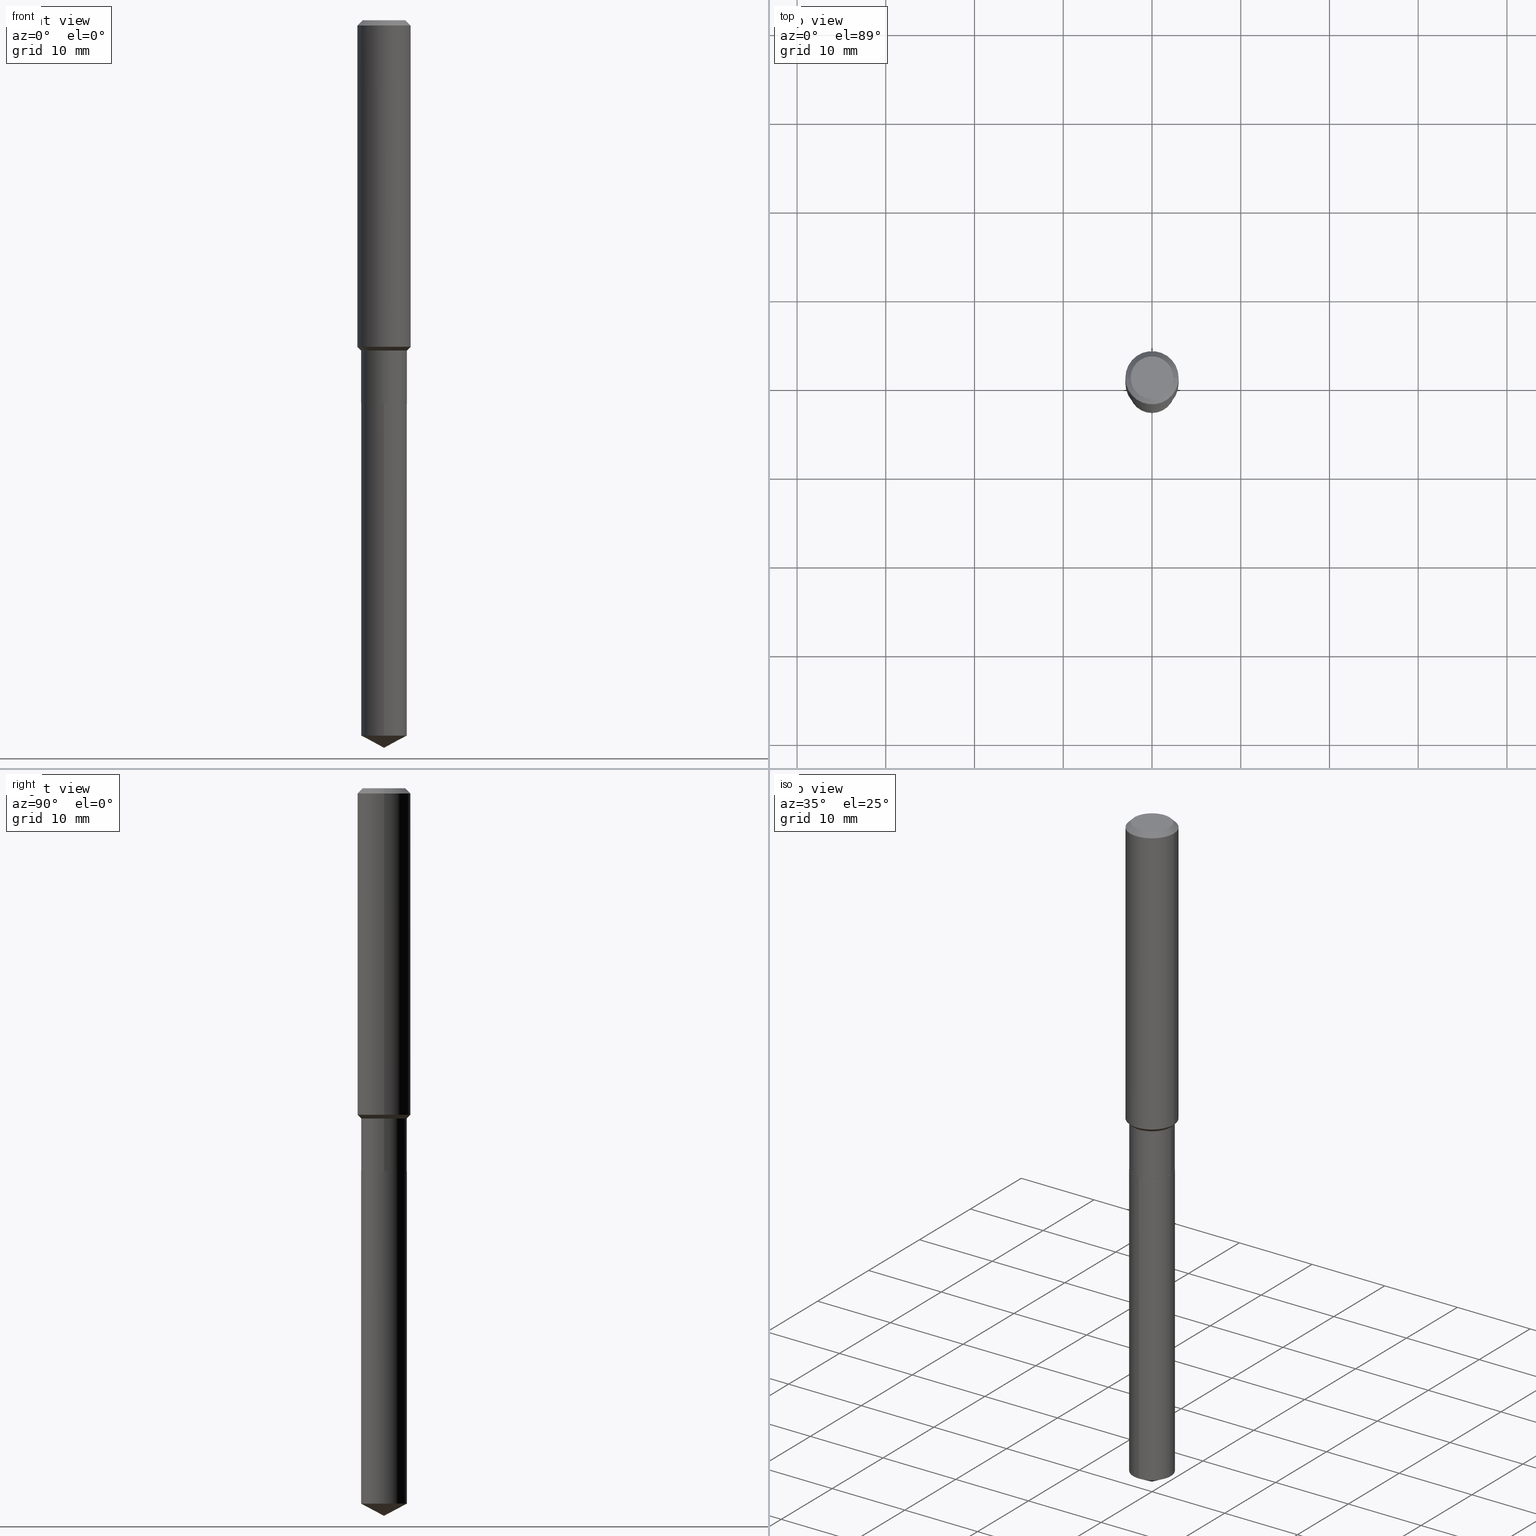
[diagram: canonical four-view strip — front | top / right | iso, engineering-drawing reading convention]
A machine part, canonical four-view strip (front | top / right | iso — engineering-drawing reading convention). The complete STEP part file that produces these views, byte-faithful:
ISO-10303-21;
HEADER;
FILE_DESCRIPTION (( 'STEP AP203' ),
    '1' );
FILE_NAME ('54807.STEP',
    '2024-04-24T15:49:00',
    ( '' ),
    ( '' ),
    'SwSTEP 2.0',
    'SolidWorks 2023',
    '' );
FILE_SCHEMA (( 'CONFIG_CONTROL_DESIGN' ));
ENDSEC;

DATA;
#1 = ORIENTED_EDGE ( 'NONE', *, *, #162, .F. ) ;
#2 = VECTOR ( 'NONE', #315, 39.37007874015748854 ) ;
#3 = DIRECTION ( 'NONE',  ( 0.000000000000000000, 0.000000000000000000, 1.000000000000000000 ) ) ;
#4 = PLANE ( 'NONE',  #42 ) ;
#5 = AXIS2_PLACEMENT_3D ( 'NONE', #176, #254, #29 ) ;
#6 = PERSON_AND_ORGANIZATION ( #424, #433 ) ;
#7 = CARTESIAN_POINT ( 'NONE',  ( 7.215561481644231637E-16, 0.1015499999999940756, -1.699100000000000499 ) ) ;
#8 = ORIENTED_EDGE ( 'NONE', *, *, #340, .F. ) ;
#9 = EDGE_LOOP ( 'NONE', ( #388, #407, #318, #412 ) ) ;
#10 = CIRCLE ( 'NONE', #218, 0.1181000000000001632 ) ;
#11 = ADVANCED_FACE ( 'NONE', ( #285 ), #4, .F. ) ;
#12 = DIRECTION ( 'NONE',  ( -2.445468806185136877E-29, 3.491481338843145188E-15, 1.000000000000000000 ) ) ;
#13 = CARTESIAN_POINT ( 'NONE',  ( 5.776197320209327532E-31, -8.246878922347559293E-17, -0.02362000000000014088 ) ) ;
#14 = DIRECTION ( 'NONE',  ( -2.445545835691527573E-29, 3.491371028205746504E-15, 1.000000000000000000 ) ) ;
#15 = FACE_OUTER_BOUND ( 'NONE', #193, .T. ) ;
#16 = DIRECTION ( 'NONE',  ( 1.000000000000000000, -6.982962677686266711E-15, 0.000000000000000000 ) ) ;
#17 = EDGE_LOOP ( 'NONE', ( #400, #477, #112, #404 ) ) ;
#18 = CIRCLE ( 'NONE', #61, 0.1015500000000000014 ) ;
#19 = VECTOR ( 'NONE', #394, 39.37007874015748143 ) ;
#20 = EDGE_CURVE ( 'NONE', #301, #30, #18, .T. ) ;
#21 = CARTESIAN_POINT ( 'NONE',  ( -0.1180999999999999966, 7.422191030112725094E-16, -0.02362000000000014088 ) ) ;
#22 = DIRECTION ( 'NONE',  ( 1.000000000000000000, -6.982962677686266711E-15, 0.000000000000000000 ) ) ;
#23 = ADVANCED_FACE ( 'NONE', ( #51 ), #123, .T. ) ;
#24 = DIRECTION ( 'NONE',  ( 0.7071067811865460184, -7.319954787623251312E-15, -0.7071067811865490160 ) ) ;
#25 = CIRCLE ( 'NONE', #33, 0.1015500000000000014 ) ;
#26 = CARTESIAN_POINT ( 'NONE',  ( 0.1181000000000001632, -5.883669778151525797E-15, -1.448950000000000182 ) ) ;
#27 = VERTEX_POINT ( 'NONE', #470 ) ;
#28 = CC_DESIGN_DATE_AND_TIME_ASSIGNMENT ( #266, #80, ( #356 ) ) ;
#29 = DIRECTION ( 'NONE',  ( 1.000000000000000000, -6.982962677686266711E-15, 4.876176775795935793E-29 ) ) ;
#30 = VERTEX_POINT ( 'NONE', #294 ) ;
#31 = EDGE_CURVE ( 'NONE', #301, #267, #63, .T. ) ;
#32 = LENGTH_MEASURE_WITH_UNIT ( LENGTH_MEASURE( 0.02539999999999999897 ), #262 );
#33 = AXIS2_PLACEMENT_3D ( 'NONE', #100, #14, #246 ) ;
#34 = VECTOR ( 'NONE', #360, 39.37007874015748143 ) ;
#35 = APPROVAL_DATE_TIME ( #82, #271 ) ;
#36 = ORIENTED_EDGE ( 'NONE', *, *, #472, .T. ) ;
#37 = APPLICATION_CONTEXT ( 'configuration controlled 3d designs of mechanical parts and assemblies' ) ;
#38 = CARTESIAN_POINT ( 'NONE',  ( 0.1010500000000000009, -6.638004321408586283E-15, -1.699100000000000277 ) ) ;
#39 = EDGE_CURVE ( 'NONE', #343, #78, #52, .T. ) ;
#40 = COORDINATED_UNIVERSAL_TIME_OFFSET ( 5, 0, .BEHIND. ) ;
#41 = ORIENTED_EDGE ( 'NONE', *, *, #370, .F. ) ;
#42 = AXIS2_PLACEMENT_3D ( 'NONE', #428, #312, #90 ) ;
#43 = DATE_AND_TIME ( #273, #252 ) ;
#44 = CONICAL_SURFACE ( 'NONE', #317, 0.1180999999999999966, 0.7853981633974461696 ) ;
#45 = DIRECTION ( 'NONE',  ( 1.000000000000000000, -6.982962677686266711E-15, 4.876176775795935793E-29 ) ) ;
#46 = APPROVAL_STATUS ( 'not_yet_approved' ) ;
#47 = DIRECTION ( 'NONE',  ( -2.445468806185136597E-29, 3.491481338843145583E-15, 1.000000000000000000 ) ) ;
#48 = CC_DESIGN_DATE_AND_TIME_ASSIGNMENT ( #43, #347, ( #186 ) ) ;
#49 = DIRECTION ( 'NONE',  ( -2.445468806185136597E-29, 3.491481338843145583E-15, 1.000000000000000000 ) ) ;
#50 = PRODUCT ( '54807', '54807', '', ( #420 ) ) ;
#51 = FACE_OUTER_BOUND ( 'NONE', #369, .T. ) ;
#52 = CIRCLE ( 'NONE', #337, 0.1015500000000000014 ) ;
#53 = DIRECTION ( 'NONE',  ( -6.982962677686266711E-15, -1.000000000000000000, 2.690150658458161520E-15 ) ) ;
#54 = CIRCLE ( 'NONE', #113, 0.1015499999999999736 ) ;
#55 = ORIENTED_EDGE ( 'NONE', *, *, #148, .T. ) ;
#56 = LINE ( 'NONE', #101, #484 ) ;
#57 = DIRECTION ( 'NONE',  ( -6.982962677686268288E-15, -1.000000000000000000, 3.541896320645553769E-15 ) ) ;
#58 = VERTEX_POINT ( 'NONE', #436 ) ;
#59 = EDGE_CURVE ( 'NONE', #413, #146, #25, .T. ) ;
#60 = FACE_OUTER_BOUND ( 'NONE', #17, .T. ) ;
#61 = AXIS2_PLACEMENT_3D ( 'NONE', #391, #309, #456 ) ;
#62 = CIRCLE ( 'NONE', #269, 0.1015499999999999736 ) ;
#63 = LINE ( 'NONE', #291, #258 ) ;
#64 = DIRECTION ( 'NONE',  ( -2.445468806185136597E-29, 3.491481338843145583E-15, 1.000000000000000000 ) ) ;
#65 = CARTESIAN_POINT ( 'NONE',  ( 7.893960195943632746E-29, -1.127052053665616049E-14, -3.228000000000000203 ) ) ;
#66 = ADVANCED_FACE ( 'NONE', ( #438 ), #211, .T. ) ;
#67 = DIRECTION ( 'NONE',  ( 1.000000000000000000, -6.982962677686266711E-15, 0.000000000000000000 ) ) ;
#68 = ORIENTED_EDGE ( 'NONE', *, *, #488, .T. ) ;
#69 = AXIS2_PLACEMENT_3D ( 'NONE', #280, #47, #422 ) ;
#70 = LOCAL_TIME ( 11, 49, 0.000000000000000000, #40 ) ;
#71 = DIRECTION ( 'NONE',  ( 6.982962677686265922E-15, 1.000000000000000000, -3.491371028205746504E-15 ) ) ;
#72 = ORIENTED_EDGE ( 'NONE', *, *, #458, .F. ) ;
#73 = ORIENTED_EDGE ( 'NONE', *, *, #148, .F. ) ;
#74 = APPROVAL_ROLE ( '' ) ;
#75 = EDGE_LOOP ( 'NONE', ( #319, #325 ) ) ;
#76 = DIRECTION ( 'NONE',  ( 1.000000000000000000, -6.982962677686267499E-15, 4.875432709231658792E-29 ) ) ;
#77 = CC_DESIGN_APPROVAL ( #160, ( #186 ) ) ;
#78 = VERTEX_POINT ( 'NONE', #166 ) ;
#79 = PLANE ( 'NONE',  #201 ) ;
#80 = DATE_TIME_ROLE ( 'creation_date' ) ;
#81 = DIRECTION ( 'NONE',  ( 1.000000000000000000, -6.982962677686269077E-15, 0.000000000000000000 ) ) ;
#82 = DATE_AND_TIME ( #190, #70 ) ;
#83 = DIRECTION ( 'NONE',  ( -2.445545835691527573E-29, 3.491371028205746504E-15, 1.000000000000000000 ) ) ;
#84 = CYLINDRICAL_SURFACE ( 'NONE', #366, 0.1015499999999999875 ) ;
#85 = AXIS2_PLACEMENT_3D ( 'NONE', #119, #490, #386 ) ;
#86 = DATE_AND_TIME ( #278, #439 ) ;
#87 = ORIENTED_EDGE ( 'NONE', *, *, #31, .T. ) ;
#88 = AXIS2_PLACEMENT_3D ( 'NONE', #364, #409, #71 ) ;
#89 = DIRECTION ( 'NONE',  ( 2.445468806185136597E-29, -3.491481338843145583E-15, -1.000000000000000000 ) ) ;
#90 = DIRECTION ( 'NONE',  ( -1.000000000000000000, 6.982962677686265922E-15, -4.876176775795935793E-29 ) ) ;
#91 = ADVANCED_FACE ( 'NONE', ( #465 ), #310, .T. ) ;
#92 = LINE ( 'NONE', #136, #233 ) ;
#93 = AXIS2_PLACEMENT_3D ( 'NONE', #272, #313, #124 ) ;
#94 = FACE_OUTER_BOUND ( 'NONE', #200, .T. ) ;
#95 = CIRCLE ( 'NONE', #385, 0.1015500000000000014 ) ;
#96 = ADVANCED_FACE ( 'NONE', ( #275 ), #84, .T. ) ;
#97 = ORIENTED_EDGE ( 'NONE', *, *, #427, .F. ) ;
#98 = CARTESIAN_POINT ( 'NONE',  ( 0.1010500000000000009, -6.638004321408586283E-15, -1.699100000000000277 ) ) ;
#99 = ADVANCED_FACE ( 'NONE', ( #459 ), #142, .T. ) ;
#100 = CARTESIAN_POINT ( 'NONE',  ( 7.762043602469263773E-29, -1.108181620523654682E-14, -3.174004907214777127 ) ) ;
#101 = CARTESIAN_POINT ( 'NONE',  ( -0.1010500000000000009, -5.214372508342807461E-15, -1.699100000000000277 ) ) ;
#102 = DIRECTION ( 'NONE',  ( -2.445545835691527573E-29, 3.491371028205746504E-15, 1.000000000000000000 ) ) ;
#103 = CONICAL_SURFACE ( 'NONE', #85, 0.1010500000000000009, 0.7853981633975507526 ) ;
#104 = AXIS2_PLACEMENT_3D ( 'NONE', #244, #431, #290 ) ;
#105 = VECTOR ( 'NONE', #141, 39.37007874015747433 ) ;
#106 = DIRECTION ( 'NONE',  ( 1.000000000000000000, -6.982962677686266711E-15, 4.876176775795936353E-29 ) ) ;
#107 = DIRECTION ( 'NONE',  ( -2.445545835691527573E-29, 3.491371028205746504E-15, 1.000000000000000000 ) ) ;
#108 = DIMENSIONAL_EXPONENTS ( 1.000000000000000000, 0.000000000000000000, 0.000000000000000000, 0.000000000000000000, 0.000000000000000000, 0.000000000000000000, 0.000000000000000000 ) ;
#109 = LINE ( 'NONE', #212, #171 ) ;
#110 = ORIENTED_EDGE ( 'NONE', *, *, #162, .T. ) ;
#111 = PLANE ( 'NONE',  #88 ) ;
#112 = ORIENTED_EDGE ( 'NONE', *, *, #458, .T. ) ;
#113 = AXIS2_PLACEMENT_3D ( 'NONE', #179, #332, #22 ) ;
#114 = ORIENTED_EDGE ( 'NONE', *, *, #340, .T. ) ;
#115 = SHAPE_DEFINITION_REPRESENTATION ( #478, #202 ) ;
#116 = EDGE_LOOP ( 'NONE', ( #238, #314, #87, #215 ) ) ;
#117 = APPROVAL_STATUS ( 'not_yet_approved' ) ;
#118 = EDGE_LOOP ( 'NONE', ( #358, #279, #265 ) ) ;
#119 = CARTESIAN_POINT ( 'NONE',  ( 4.155096048589166181E-29, -5.932375942828389297E-15, -1.699100000000000277 ) ) ;
#120 = CONICAL_SURFACE ( 'NONE', #338, 74.04434902938368168, 1.082104136236487379 ) ;
#121 = PERSON_AND_ORGANIZATION ( #424, #433 ) ;
#122 = PERSON_AND_ORGANIZATION_ROLE ( 'design_supplier' ) ;
#123 = CYLINDRICAL_SURFACE ( 'NONE', #241, 0.1015500000000000014 ) ;
#124 = DIRECTION ( 'NONE',  ( 1.000000000000000000, -6.982962677686266711E-15, 0.000000000000000000 ) ) ;
#125 = COORDINATED_UNIVERSAL_TIME_OFFSET ( 5, 0, .BEHIND. ) ;
#126 = AXIS2_PLACEMENT_3D ( 'NONE', #13, #167, #129 ) ;
#127 = LOCAL_TIME ( 11, 49, 0.000000000000000000, #196 ) ;
#128 = EDGE_LOOP ( 'NONE', ( #159, #380, #453 ) ) ;
#129 = DIRECTION ( 'NONE',  ( -1.000000000000000000, 6.982962677686266711E-15, 0.000000000000000000 ) ) ;
#130 = EDGE_LOOP ( 'NONE', ( #255, #180, #36, #8 ) ) ;
#131 = CARTESIAN_POINT ( 'NONE',  ( -0.1180999999999999966, -1.731574366637446524E-15, -0.02362000000000014088 ) ) ;
#132 = UNCERTAINTY_MEASURE_WITH_UNIT (LENGTH_MEASURE( 1.000000000000000082E-05 ), #174, 'distance_accuracy_value', 'NONE');
#133 = CARTESIAN_POINT ( 'NONE',  ( 5.776197320209327532E-31, -8.246878922347559293E-17, -0.02362000000000014088 ) ) ;
#134 = CC_DESIGN_APPROVAL ( #271, ( #356 ) ) ;
#135 = APPLICATION_CONTEXT ( 'configuration controlled 3d designs of mechanical parts and assemblies' ) ;
#136 = CARTESIAN_POINT ( 'NONE',  ( -0.1015499999999999875, 7.215561481643816499E-16, -4.995178584153856401E-30 ) ) ;
#137 = ADVANCED_FACE ( 'NONE', ( #230 ), #79, .F. ) ;
#138 = DIRECTION ( 'NONE',  ( -2.445468806185136877E-29, 3.491481338843145188E-15, 1.000000000000000000 ) ) ;
#139 =( NAMED_UNIT ( * ) PLANE_ANGLE_UNIT ( ) SI_UNIT ( $, .RADIAN. ) );
#140 = DIRECTION ( 'NONE',  ( -2.445545835691527573E-29, 3.491371028205746504E-15, 1.000000000000000000 ) ) ;
#141 = DIRECTION ( 'NONE',  ( -6.165590087286837607E-15, -0.8829475928589267664, 0.4694715627858912499 ) ) ;
#142 = CONICAL_SURFACE ( 'NONE', #163, 0.1010500000000000009, 0.7853981633975507526 ) ;
#143 = CARTESIAN_POINT ( 'NONE',  ( -0.1015499999999999736, -4.395209753910248540E-15, -1.465500000000000247 ) ) ;
#144 = ORIENTED_EDGE ( 'NONE', *, *, #232, .T. ) ;
#145 = DIRECTION ( 'NONE',  ( -6.982962677686268288E-15, -1.000000000000000000, 3.541896320645553769E-15 ) ) ;
#146 = VERTEX_POINT ( 'NONE', #339 ) ;
#147 = DIRECTION ( 'NONE',  ( 1.000000000000000000, -6.982962677686269077E-15, 0.000000000000000000 ) ) ;
#148 = EDGE_CURVE ( 'NONE', #413, #78, #348, .T. ) ;
#149 = ORIENTED_EDGE ( 'NONE', *, *, #472, .F. ) ;
#150 = APPROVAL_PERSON_ORGANIZATION ( #154, #271, #153 ) ;
#151 = APPROVAL_DATE_TIME ( #86, #160 ) ;
#152 = ORIENTED_EDGE ( 'NONE', *, *, #410, .T. ) ;
#153 = APPROVAL_ROLE ( '' ) ;
#154 = PERSON_AND_ORGANIZATION ( #424, #433 ) ;
#155 = ORIENTED_EDGE ( 'NONE', *, *, #39, .T. ) ;
#156 = CIRCLE ( 'NONE', #69, 0.1010500000000000009 ) ;
#157 = VECTOR ( 'NONE', #24, 39.37007874015748143 ) ;
#158 = PERSON_AND_ORGANIZATION_ROLE ( 'design_owner' ) ;
#159 = ORIENTED_EDGE ( 'NONE', *, *, #198, .F. ) ;
#160 = APPROVAL ( #379, 'UNSPECIFIED' ) ;
#161 = CARTESIAN_POINT ( 'NONE',  ( 0.000000000000000000, 0.000000000000000000, 0.000000000000000000 ) ) ;
#162 = EDGE_CURVE ( 'NONE', #27, #224, #156, .T. ) ;
#163 = AXIS2_PLACEMENT_3D ( 'NONE', #194, #268, #81 ) ;
#164 = DIRECTION ( 'NONE',  ( 1.000000000000000000, -6.982962677686266711E-15, 4.876176775795936353E-29 ) ) ;
#165 = DIRECTION ( 'NONE',  ( 1.000000000000000000, -6.982962677686263555E-15, 0.000000000000000000 ) ) ;
#166 = CARTESIAN_POINT ( 'NONE',  ( 7.215561481644595499E-16, 0.1015499999999940756, -1.699100000000000499 ) ) ;
#167 = DIRECTION ( 'NONE',  ( 2.445468806185136597E-29, -3.491481338843145583E-15, -1.000000000000000000 ) ) ;
#168 = DESIGN_CONTEXT ( 'detailed design', #37, 'design' ) ;
#169 = AXIS2_PLACEMENT_3D ( 'NONE', #249, #441, #106 ) ;
#170 = CARTESIAN_POINT ( 'NONE',  ( 3.543362026721954415E-29, -5.058981885916776746E-15, -1.448950000000000182 ) ) ;
#171 = VECTOR ( 'NONE', #447, 39.37007874015748143 ) ;
#172 = ORIENTED_EDGE ( 'NONE', *, *, #282, .T. ) ;
#173 = CARTESIAN_POINT ( 'NONE',  ( 4.155096048589166181E-29, -5.932375942828389297E-15, -1.699100000000000277 ) ) ;
#174 =( CONVERSION_BASED_UNIT ( 'INCH', #32 ) LENGTH_UNIT ( ) NAMED_UNIT ( #108 ) );
#175 = ORIENTED_EDGE ( 'NONE', *, *, #349, .F. ) ;
#176 = CARTESIAN_POINT ( 'NONE',  ( 0.000000000000000000, 0.000000000000000000, 0.000000000000000000 ) ) ;
#177 = AXIS2_PLACEMENT_3D ( 'NONE', #287, #205, #16 ) ;
#178 = CIRCLE ( 'NONE', #455, 0.1180999999999999966 ) ;
#179 = CARTESIAN_POINT ( 'NONE',  ( 3.583834535464318409E-29, -5.116765902074630486E-15, -1.465500000000000247 ) ) ;
#180 = ORIENTED_EDGE ( 'NONE', *, *, #432, .T. ) ;
#181 = ADVANCED_FACE ( 'NONE', ( #236 ), #103, .T. ) ;
#182 = CARTESIAN_POINT ( 'NONE',  ( 0.1180999999999999966, -8.926936027602933910E-16, -0.02362000000000014088 ) ) ;
#183 = ORIENTED_EDGE ( 'NONE', *, *, #432, .F. ) ;
#184 = ORIENTED_EDGE ( 'NONE', *, *, #410, .F. ) ;
#185 = CIRCLE ( 'NONE', #250, 0.1015500000000000014 ) ;
#186 = SECURITY_CLASSIFICATION ( '', '', #305 ) ;
#187 = ORIENTED_EDGE ( 'NONE', *, *, #234, .T. ) ;
#188 = DIRECTION ( 'NONE',  ( 1.000000000000000000, -6.982962677686265922E-15, 4.876176775795935793E-29 ) ) ;
#189 = ORIENTED_EDGE ( 'NONE', *, *, #234, .F. ) ;
#190 = CALENDAR_DATE ( 2024, 24, 4 ) ;
#191 = CIRCLE ( 'NONE', #302, 0.1010500000000000009 ) ;
#192 = DATE_AND_TIME ( #485, #127 ) ;
#193 = EDGE_LOOP ( 'NONE', ( #183, #489, #114, #336 ) ) ;
#194 = CARTESIAN_POINT ( 'NONE',  ( 4.155096048589166181E-29, -5.932375942828389297E-15, -1.699100000000000277 ) ) ;
#195 = MANIFOLD_SOLID_BREP ( 'Body-Move/Copy2[1]', #226 ) ;
#196 = COORDINATED_UNIVERSAL_TIME_OFFSET ( 5, 0, .BEHIND. ) ;
#197 = LINE ( 'NONE', #351, #2 ) ;
#198 = EDGE_CURVE ( 'NONE', #345, #413, #197, .T. ) ;
#199 = DIRECTION ( 'NONE',  ( 1.000000000000000000, -6.982962677686263555E-15, 0.000000000000000000 ) ) ;
#200 = EDGE_LOOP ( 'NONE', ( #375, #55, #333, #482 ) ) ;
#201 = AXIS2_PLACEMENT_3D ( 'NONE', #225, #383, #188 ) ;
#202 = ADVANCED_BREP_SHAPE_REPRESENTATION ( '54807', ( #195, #361, #295 ), #362 ) ;
#203 = CC_DESIGN_SECURITY_CLASSIFICATION ( #186, ( #408 ) ) ;
#204 = CARTESIAN_POINT ( 'NONE',  ( 3.543362026721954415E-29, -5.058981885916776746E-15, -1.448950000000000182 ) ) ;
#205 = DIRECTION ( 'NONE',  ( -2.445468806185136597E-29, 3.491481338843145583E-15, 1.000000000000000000 ) ) ;
#206 = DIRECTION ( 'NONE',  ( -2.445468806185136597E-29, 3.491481338843145583E-15, 1.000000000000000000 ) ) ;
#207 = ORIENTED_EDGE ( 'NONE', *, *, #418, .F. ) ;
#208 = CIRCLE ( 'NONE', #293, 0.1181000000000001632 ) ;
#209 = CYLINDRICAL_SURFACE ( 'NONE', #475, 0.1181000000000000799 ) ;
#210 = LOCAL_TIME ( 11, 49, 0.000000000000000000, #303 ) ;
#211 = CYLINDRICAL_SURFACE ( 'NONE', #169, 0.1181000000000000799 ) ;
#212 = CARTESIAN_POINT ( 'NONE',  ( 0.1181000000000000799, -8.246878922347486570E-16, 5.758764772215004644E-30 ) ) ;
#213 = EDGE_LOOP ( 'NONE', ( #175, #110, #172, #416 ) ) ;
#214 = CARTESIAN_POINT ( 'NONE',  ( 5.776197320209327532E-31, -8.246878922347559293E-17, -0.02362000000000014088 ) ) ;
#215 = ORIENTED_EDGE ( 'NONE', *, *, #488, .F. ) ;
#216 = FACE_OUTER_BOUND ( 'NONE', #463, .T. ) ;
#217 = EDGE_LOOP ( 'NONE', ( #152, #486, #189, #97 ) ) ;
#218 = AXIS2_PLACEMENT_3D ( 'NONE', #204, #49, #199 ) ;
#219 = CARTESIAN_POINT ( 'NONE',  ( 3.583834535464318409E-29, -5.116765902074630486E-15, -1.465500000000000247 ) ) ;
#220 = ORIENTED_EDGE ( 'NONE', *, *, #372, .T. ) ;
#221 = LINE ( 'NONE', #365, #289 ) ;
#222 = PRODUCT_RELATED_PRODUCT_CATEGORY ( 'detail', '', ( #50 ) ) ;
#223 = EDGE_CURVE ( 'NONE', #263, #462, #288, .T. ) ;
#224 = VERTEX_POINT ( 'NONE', #38 ) ;
#225 = CARTESIAN_POINT ( 'NONE',  ( 4.155096048589166181E-29, -5.932375942828389297E-15, -1.699100000000000277 ) ) ;
#226 = CLOSED_SHELL ( 'NONE', ( #341, #328, #397, #23, #487 ) ) ;
#227 = CIRCLE ( 'NONE', #461, 0.1015500000000000014 ) ;
#228 = EDGE_LOOP ( 'NONE', ( #187, #304, #149, #72 ) ) ;
#229 = APPLICATION_PROTOCOL_DEFINITION ( 'international standard', 'config_control_design', 1994, #37 ) ;
#230 = FACE_OUTER_BOUND ( 'NONE', #425, .T. ) ;
#231 = CALENDAR_DATE ( 2024, 24, 4 ) ;
#232 = EDGE_CURVE ( 'NONE', #30, #58, #92, .T. ) ;
#233 = VECTOR ( 'NONE', #12, 39.37007874015748143 ) ;
#234 = EDGE_CURVE ( 'NONE', #390, #257, #10, .T. ) ;
#235 = CIRCLE ( 'NONE', #330, 0.1180999999999999966 ) ;
#236 = FACE_OUTER_BOUND ( 'NONE', #9, .T. ) ;
#237 = CARTESIAN_POINT ( 'NONE',  ( -8.838724103706172862E-28, 1.261852191837126784E-13, 36.14207874015747990 ) ) ;
#238 = ORIENTED_EDGE ( 'NONE', *, *, #232, .F. ) ;
#239 = CYLINDRICAL_SURFACE ( 'NONE', #259, 0.1015500000000000014 ) ;
#240 = ADVANCED_FACE ( 'NONE', ( #15 ), #483, .T. ) ;
#241 = AXIS2_PLACEMENT_3D ( 'NONE', #274, #83, #243 ) ;
#242 = CARTESIAN_POINT ( 'NONE',  ( -0.1181000000000000799, 8.391509709326788873E-16, -5.809262341591047988E-30 ) ) ;
#243 = DIRECTION ( 'NONE',  ( -6.982962677686266711E-15, -1.000000000000000000, 2.690150658458161520E-15 ) ) ;
#244 = CARTESIAN_POINT ( 'NONE',  ( 6.603013411620882309E-46, -9.427353171913646324E-32, -2.700101262760083747E-17 ) ) ;
#245 = EDGE_CURVE ( 'NONE', #257, #390, #208, .T. ) ;
#246 = DIRECTION ( 'NONE',  ( -6.982962677686266711E-15, -1.000000000000000000, 5.380301316916323039E-15 ) ) ;
#247 = DIRECTION ( 'NONE',  ( -1.000000000000000000, 6.982962677686266711E-15, 0.000000000000000000 ) ) ;
#248 = ORIENTED_EDGE ( 'NONE', *, *, #427, .T. ) ;
#249 = CARTESIAN_POINT ( 'NONE',  ( 0.000000000000000000, 0.000000000000000000, 0.000000000000000000 ) ) ;
#250 = AXIS2_PLACEMENT_3D ( 'NONE', #468, #469, #466 ) ;
#251 = LINE ( 'NONE', #143, #393 ) ;
#252 = LOCAL_TIME ( 11, 49, 0.000000000000000000, #384 ) ;
#253 = CARTESIAN_POINT ( 'NONE',  ( -8.838724103706172862E-28, 1.261852191837126784E-13, 36.14207874015747990 ) ) ;
#254 = DIRECTION ( 'NONE',  ( -2.445468806185136597E-29, 3.491481338843145583E-15, 1.000000000000000000 ) ) ;
#255 = ORIENTED_EDGE ( 'NONE', *, *, #326, .F. ) ;
#256 = CARTESIAN_POINT ( 'NONE',  ( 0.1180999999999999966, -9.071566814582237199E-16, -0.02362000000000014088 ) ) ;
#257 = VERTEX_POINT ( 'NONE', #321 ) ;
#258 = VECTOR ( 'NONE', #138, 39.37007874015748143 ) ;
#259 = AXIS2_PLACEMENT_3D ( 'NONE', #173, #429, #53 ) ;
#260 = CC_DESIGN_PERSON_AND_ORGANIZATION_ASSIGNMENT ( #308, #264, ( #408 ) ) ;
#261 = ADVANCED_FACE ( 'NONE', ( #324 ), #460, .T. ) ;
#262 =( LENGTH_UNIT ( ) NAMED_UNIT ( * ) SI_UNIT ( $, .METRE. ) );
#263 = VERTEX_POINT ( 'NONE', #322 ) ;
#264 = PERSON_AND_ORGANIZATION_ROLE ( 'creator' ) ;
#265 = ORIENTED_EDGE ( 'NONE', *, *, #277, .F. ) ;
#266 = DATE_AND_TIME ( #231, #210 ) ;
#267 = VERTEX_POINT ( 'NONE', #355 ) ;
#268 = DIRECTION ( 'NONE',  ( -2.445468806185136597E-29, 3.491481338843145583E-15, 1.000000000000000000 ) ) ;
#269 = AXIS2_PLACEMENT_3D ( 'NONE', #219, #300, #449 ) ;
#270 = DIRECTION ( 'NONE',  ( 1.000000000000000000, 0.000000000000000000, 0.000000000000000000 ) ) ;
#271 = APPROVAL ( #117, 'UNSPECIFIED' ) ;
#272 = CARTESIAN_POINT ( 'NONE',  ( 3.583834535464318409E-29, -5.116765902074630486E-15, -1.465500000000000247 ) ) ;
#273 = CALENDAR_DATE ( 2024, 24, 4 ) ;
#274 = CARTESIAN_POINT ( 'NONE',  ( 4.155096048589166181E-29, -5.932375942828389297E-15, -1.699100000000000277 ) ) ;
#275 = FACE_OUTER_BOUND ( 'NONE', #352, .T. ) ;
#276 = CC_DESIGN_PERSON_AND_ORGANIZATION_ASSIGNMENT ( #311, #122, ( #408 ) ) ;
#277 = EDGE_CURVE ( 'NONE', #146, #413, #185, .T. ) ;
#278 = CALENDAR_DATE ( 2024, 24, 4 ) ;
#279 = ORIENTED_EDGE ( 'NONE', *, *, #198, .T. ) ;
#280 = CARTESIAN_POINT ( 'NONE',  ( 4.155096048589166181E-29, -5.932375942828389297E-15, -1.699100000000000277 ) ) ;
#281 = VECTOR ( 'NONE', #378, 39.37007874015748143 ) ;
#282 = EDGE_CURVE ( 'NONE', #224, #301, #434, .T. ) ;
#283 = APPROVAL_PERSON_ORGANIZATION ( #421, #467, #74 ) ;
#284 = DIRECTION ( 'NONE',  ( -6.982962677686266711E-15, -1.000000000000000000, 2.690150658458161520E-15 ) ) ;
#285 = FACE_OUTER_BOUND ( 'NONE', #75, .T. ) ;
#286 = FACE_OUTER_BOUND ( 'NONE', #118, .T. ) ;
#287 = CARTESIAN_POINT ( 'NONE',  ( 3.583834535464318409E-29, -5.116765902074630486E-15, -1.465500000000000247 ) ) ;
#288 = CIRCLE ( 'NONE', #474, 0.09447999999999998066 ) ;
#289 = VECTOR ( 'NONE', #473, 39.37007874015748143 ) ;
#290 = DIRECTION ( 'NONE',  ( 1.000000000000000000, -6.982962677686267499E-15, 4.875432709231658792E-29 ) ) ;
#291 = CARTESIAN_POINT ( 'NONE',  ( 0.1015499999999999875, -7.091198599190402890E-16, 4.951757515820772372E-30 ) ) ;
#292 = DIRECTION ( 'NONE',  ( -0.7071067811865460184, 2.468850131082241283E-15, -0.7071067811865490160 ) ) ;
#293 = AXIS2_PLACEMENT_3D ( 'NONE', #170, #206, #165 ) ;
#294 = CARTESIAN_POINT ( 'NONE',  ( -0.1015500000000000014, -4.802141903952417194E-15, -1.698600000000000332 ) ) ;
#295 = AXIS2_PLACEMENT_3D ( 'NONE', #161, #3, #270 ) ;
#296 = CARTESIAN_POINT ( 'NONE',  ( 5.776197320209327532E-31, -8.246878922347559293E-17, -0.02362000000000014088 ) ) ;
#297 = DIRECTION ( 'NONE',  ( -2.445468806185136597E-29, 3.491481338843145583E-15, 1.000000000000000000 ) ) ;
#298 = LINE ( 'NONE', #182, #157 ) ;
#299 = VERTEX_POINT ( 'NONE', #131 ) ;
#300 = DIRECTION ( 'NONE',  ( -2.445468806185136597E-29, 3.491481338843145583E-15, 1.000000000000000000 ) ) ;
#301 = VERTEX_POINT ( 'NONE', #399 ) ;
#302 = AXIS2_PLACEMENT_3D ( 'NONE', #405, #368, #147 ) ;
#303 = COORDINATED_UNIVERSAL_TIME_OFFSET ( 5, 0, .BEHIND. ) ;
#304 = ORIENTED_EDGE ( 'NONE', *, *, #346, .T. ) ;
#305 = SECURITY_CLASSIFICATION_LEVEL ( 'unclassified' ) ;
#306 = EDGE_LOOP ( 'NONE', ( #207, #68, #248, #446 ) ) ;
#307 = CARTESIAN_POINT ( 'NONE',  ( 6.603013411620882309E-46, -9.427353171913646324E-32, -2.700101262760083747E-17 ) ) ;
#308 = PERSON_AND_ORGANIZATION ( #424, #433 ) ;
#309 = DIRECTION ( 'NONE',  ( -2.445468806185136597E-29, 3.491481338843145583E-15, 1.000000000000000000 ) ) ;
#310 = CONICAL_SURFACE ( 'NONE', #93, 0.1015499999999999736, 0.7853981633974503884 ) ;
#311 = PERSON_AND_ORGANIZATION ( #424, #433 ) ;
#312 = DIRECTION ( 'NONE',  ( 2.438088387897960049E-29, -3.491481338843145188E-15, -1.000000000000000000 ) ) ;
#313 = DIRECTION ( 'NONE',  ( -2.445468806185136597E-29, 3.491481338843145583E-15, 1.000000000000000000 ) ) ;
#314 = ORIENTED_EDGE ( 'NONE', *, *, #402, .T. ) ;
#315 = DIRECTION ( 'NONE',  ( 6.273719981627766076E-15, 0.8829475928589298750, 0.4694715627858848661 ) ) ;
#316 = CIRCLE ( 'NONE', #104, 0.09447999999999998066 ) ;
#317 = AXIS2_PLACEMENT_3D ( 'NONE', #133, #89, #247 ) ;
#318 = ORIENTED_EDGE ( 'NONE', *, *, #20, .F. ) ;
#319 = ORIENTED_EDGE ( 'NONE', *, *, #223, .T. ) ;
#320 = CARTESIAN_POINT ( 'NONE',  ( 4.155096048589166181E-29, -5.932375942828389297E-15, -1.699100000000000277 ) ) ;
#321 = CARTESIAN_POINT ( 'NONE',  ( -0.1181000000000001632, -4.219830914984096182E-15, -1.448950000000000182 ) ) ;
#322 = CARTESIAN_POINT ( 'NONE',  ( -0.09447999999999998066, 7.009847083995354710E-16, -2.700101262760559836E-17 ) ) ;
#323 = VECTOR ( 'NONE', #292, 39.37007874015748143 ) ;
#324 = FACE_OUTER_BOUND ( 'NONE', #306, .T. ) ;
#325 = ORIENTED_EDGE ( 'NONE', *, *, #326, .T. ) ;
#326 = EDGE_CURVE ( 'NONE', #462, #263, #316, .T. ) ;
#327 = DIRECTION ( 'NONE',  ( -2.445468806185136597E-29, 3.491481338843145583E-15, 1.000000000000000000 ) ) ;
#328 = ADVANCED_FACE ( 'NONE', ( #286 ), #120, .T. ) ;
#329 = FACE_OUTER_BOUND ( 'NONE', #128, .T. ) ;
#330 = AXIS2_PLACEMENT_3D ( 'NONE', #296, #64, #445 ) ;
#331 = LINE ( 'NONE', #65, #105 ) ;
#332 = DIRECTION ( 'NONE',  ( -2.445468806185136597E-29, 3.491481338843145583E-15, 1.000000000000000000 ) ) ;
#333 = ORIENTED_EDGE ( 'NONE', *, *, #39, .F. ) ;
#334 = CARTESIAN_POINT ( 'NONE',  ( 4.153873314186073379E-29, -5.930630202158967793E-15, -1.698600000000000332 ) ) ;
#335 = ORIENTED_EDGE ( 'NONE', *, *, #31, .F. ) ;
#336 = ORIENTED_EDGE ( 'NONE', *, *, #444, .T. ) ;
#337 = AXIS2_PLACEMENT_3D ( 'NONE', #398, #140, #395 ) ;
#338 = AXIS2_PLACEMENT_3D ( 'NONE', #237, #396, #57 ) ;
#339 = CARTESIAN_POINT ( 'NONE',  ( -7.091198599189627834E-16, -0.1015500000000110897, -3.174004907214776683 ) ) ;
#340 = EDGE_CURVE ( 'NONE', #263, #299, #353, .T. ) ;
#341 = ADVANCED_FACE ( 'NONE', ( #94 ), #239, .T. ) ;
#342 = PERSON_AND_ORGANIZATION_ROLE ( 'creator' ) ;
#343 = VERTEX_POINT ( 'NONE', #437 ) ;
#344 = CARTESIAN_POINT ( 'NONE',  ( 0.000000000000000000, 0.000000000000000000, 0.000000000000000000 ) ) ;
#345 = VERTEX_POINT ( 'NONE', #464 ) ;
#346 = EDGE_CURVE ( 'NONE', #257, #299, #392, .T. ) ;
#347 = DATE_TIME_ROLE ( 'classification_date' ) ;
#348 = LINE ( 'NONE', #7, #281 ) ;
#349 = EDGE_CURVE ( 'NONE', #27, #30, #56, .T. ) ;
#350 = ADVANCED_FACE ( 'NONE', ( #389 ), #44, .T. ) ;
#351 = CARTESIAN_POINT ( 'NONE',  ( 7.894224252953099318E-29, -1.127014567904815207E-14, -3.228000000000000203 ) ) ;
#352 = EDGE_LOOP ( 'NONE', ( #382, #144, #184, #335 ) ) ;
#353 = LINE ( 'NONE', #21, #323 ) ;
#354 = CLOSED_SHELL ( 'NONE', ( #181, #350, #66, #91, #96, #411, #261, #357, #240, #11, #137, #99 ) ) ;
#355 = CARTESIAN_POINT ( 'NONE',  ( 0.1015499999999999736, -5.825885761993670479E-15, -1.465500000000000247 ) ) ;
#356 = PRODUCT_DEFINITION ( 'UNKNOWN', '', #408, #168 ) ;
#357 = ADVANCED_FACE ( 'NONE', ( #60 ), #209, .T. ) ;
#358 = ORIENTED_EDGE ( 'NONE', *, *, #440, .F. ) ;
#359 = DIRECTION ( 'NONE',  ( -0.7071067811866199593, 7.493145998870616062E-15, 0.7071067811864750752 ) ) ;
#360 = DIRECTION ( 'NONE',  ( 0.7071067811866199593, -2.468850131083015945E-15, 0.7071067811864750752 ) ) ;
#361 = MANIFOLD_SOLID_BREP ( 'Body-Move/Copy2[2]', #354 ) ;
#362 =( GEOMETRIC_REPRESENTATION_CONTEXT ( 3 ) GLOBAL_UNCERTAINTY_ASSIGNED_CONTEXT ( ( #132 ) ) GLOBAL_UNIT_ASSIGNED_CONTEXT ( ( #174, #139, #381 ) ) REPRESENTATION_CONTEXT ( 'NONE', 'WORKASPACE' ) );
#363 = CARTESIAN_POINT ( 'NONE',  ( 0.000000000000000000, 0.000000000000000000, 0.000000000000000000 ) ) ;
#364 = CARTESIAN_POINT ( 'NONE',  ( 4.155096048589166181E-29, -5.932375942828389297E-15, -1.699100000000000277 ) ) ;
#365 = CARTESIAN_POINT ( 'NONE',  ( 0.1015499999999999736, -5.825885761993670479E-15, -1.465500000000000247 ) ) ;
#366 = AXIS2_PLACEMENT_3D ( 'NONE', #344, #419, #45 ) ;
#367 = AXIS2_PLACEMENT_3D ( 'NONE', #253, #102, #145 ) ;
#368 = DIRECTION ( 'NONE',  ( -2.445468806185136597E-29, 3.491481338843145583E-15, 1.000000000000000000 ) ) ;
#369 = EDGE_LOOP ( 'NONE', ( #73, #480, #220, #41 ) ) ;
#370 = EDGE_CURVE ( 'NONE', #78, #343, #95, .T. ) ;
#371 = DIRECTION ( 'NONE',  ( -0.7071067811865490160, 7.493145998870360471E-15, 0.7071067811865460184 ) ) ;
#372 = EDGE_CURVE ( 'NONE', #146, #343, #423, .T. ) ;
#373 = DIRECTION ( 'NONE',  ( 1.000000000000000000, -6.982962677686264344E-15, 0.000000000000000000 ) ) ;
#374 = APPLICATION_PROTOCOL_DEFINITION ( 'international standard', 'config_control_design', 1994, #135 ) ;
#375 = ORIENTED_EDGE ( 'NONE', *, *, #277, .T. ) ;
#376 = VECTOR ( 'NONE', #107, 39.37007874015748143 ) ;
#377 = APPROVAL_PERSON_ORGANIZATION ( #6, #160, #454 ) ;
#378 = DIRECTION ( 'NONE',  ( -2.445545835691527573E-29, 3.491371028205746504E-15, 1.000000000000000000 ) ) ;
#379 = APPROVAL_STATUS ( 'not_yet_approved' ) ;
#380 = ORIENTED_EDGE ( 'NONE', *, *, #440, .T. ) ;
#381 =( NAMED_UNIT ( * ) SI_UNIT ( $, .STERADIAN. ) SOLID_ANGLE_UNIT ( ) );
#382 = ORIENTED_EDGE ( 'NONE', *, *, #20, .T. ) ;
#383 = DIRECTION ( 'NONE',  ( -2.438088387897960049E-29, 3.491481338843145188E-15, 1.000000000000000000 ) ) ;
#384 = COORDINATED_UNIVERSAL_TIME_OFFSET ( 5, 0, .BEHIND. ) ;
#385 = AXIS2_PLACEMENT_3D ( 'NONE', #320, #471, #284 ) ;
#386 = DIRECTION ( 'NONE',  ( 1.000000000000000000, -6.982962677686269077E-15, 0.000000000000000000 ) ) ;
#387 = CC_DESIGN_PERSON_AND_ORGANIZATION_ASSIGNMENT ( #452, #415, ( #186 ) ) ;
#388 = ORIENTED_EDGE ( 'NONE', *, *, #435, .T. ) ;
#389 = FACE_OUTER_BOUND ( 'NONE', #130, .T. ) ;
#390 = VERTEX_POINT ( 'NONE', #26 ) ;
#391 = CARTESIAN_POINT ( 'NONE',  ( 4.153873314186073379E-29, -5.930630202158967793E-15, -1.698600000000000332 ) ) ;
#392 = LINE ( 'NONE', #242, #19 ) ;
#393 = VECTOR ( 'NONE', #371, 39.37007874015748143 ) ;
#394 = DIRECTION ( 'NONE',  ( -2.445468806185136877E-29, 3.491481338843145188E-15, 1.000000000000000000 ) ) ;
#395 = DIRECTION ( 'NONE',  ( -6.982962677686266711E-15, -1.000000000000000000, 2.690150658458161520E-15 ) ) ;
#396 = DIRECTION ( 'NONE',  ( -2.445545835691527573E-29, 3.491371028205746504E-15, 1.000000000000000000 ) ) ;
#397 = ADVANCED_FACE ( 'NONE', ( #329 ), #448, .T. ) ;
#398 = CARTESIAN_POINT ( 'NONE',  ( 4.155096048589166181E-29, -5.932375942828389297E-15, -1.699100000000000277 ) ) ;
#399 = CARTESIAN_POINT ( 'NONE',  ( 0.1015500000000000014, -6.639750062078007786E-15, -1.698600000000000332 ) ) ;
#400 = ORIENTED_EDGE ( 'NONE', *, *, #346, .F. ) ;
#401 = CC_DESIGN_APPROVAL ( #467, ( #408 ) ) ;
#402 = EDGE_CURVE ( 'NONE', #30, #301, #227, .T. ) ;
#403 = FACE_OUTER_BOUND ( 'NONE', #116, .T. ) ;
#404 = ORIENTED_EDGE ( 'NONE', *, *, #444, .F. ) ;
#405 = CARTESIAN_POINT ( 'NONE',  ( 4.155096048589166181E-29, -5.932375942828389297E-15, -1.699100000000000277 ) ) ;
#406 = DIRECTION ( 'NONE',  ( -2.445468806185136597E-29, 3.491481338843145583E-15, 1.000000000000000000 ) ) ;
#407 = ORIENTED_EDGE ( 'NONE', *, *, #349, .T. ) ;
#408 = PRODUCT_DEFINITION_FORMATION_WITH_SPECIFIED_SOURCE ( 'ANY', '', #50, .NOT_KNOWN. ) ;
#409 = DIRECTION ( 'NONE',  ( 2.445545835691527293E-29, -3.491371028205746504E-15, -1.000000000000000000 ) ) ;
#410 = EDGE_CURVE ( 'NONE', #267, #58, #54, .T. ) ;
#411 = ADVANCED_FACE ( 'NONE', ( #403 ), #479, .T. ) ;
#412 = ORIENTED_EDGE ( 'NONE', *, *, #282, .F. ) ;
#413 = VERTEX_POINT ( 'NONE', #442 ) ;
#414 = DIRECTION ( 'NONE',  ( -2.445468806185136597E-29, 3.491481338843145583E-15, 1.000000000000000000 ) ) ;
#415 = PERSON_AND_ORGANIZATION_ROLE ( 'classification_officer' ) ;
#416 = ORIENTED_EDGE ( 'NONE', *, *, #402, .F. ) ;
#417 = PERSON_AND_ORGANIZATION ( #424, #433 ) ;
#418 = EDGE_CURVE ( 'NONE', #58, #257, #251, .T. ) ;
#419 = DIRECTION ( 'NONE',  ( -2.445468806185136597E-29, 3.491481338843145583E-15, 1.000000000000000000 ) ) ;
#420 = MECHANICAL_CONTEXT ( 'NONE', #135, 'mechanical' ) ;
#421 = PERSON_AND_ORGANIZATION ( #424, #433 ) ;
#422 = DIRECTION ( 'NONE',  ( 1.000000000000000000, -6.982962677686269077E-15, 0.000000000000000000 ) ) ;
#423 = LINE ( 'NONE', #476, #376 ) ;
#424 = PERSON ( 'UNSPECIFIED', 'UNSPECIFIED', 'UNSPECIFIED', ('UNSPECIFIED'), ('UNSPECIFIED'), ('UNSPECIFIED') ) ;
#425 = EDGE_LOOP ( 'NONE', ( #443, #1 ) ) ;
#426 = CC_DESIGN_PERSON_AND_ORGANIZATION_ASSIGNMENT ( #417, #158, ( #50 ) ) ;
#427 = EDGE_CURVE ( 'NONE', #267, #390, #221, .T. ) ;
#428 = CARTESIAN_POINT ( 'NONE',  ( 3.301506705810441154E-46, -4.713676585956823162E-32, -1.350050631380041873E-17 ) ) ;
#429 = DIRECTION ( 'NONE',  ( -2.445545835691527573E-29, 3.491371028205746504E-15, 1.000000000000000000 ) ) ;
#430 = VERTEX_POINT ( 'NONE', #256 ) ;
#431 = DIRECTION ( 'NONE',  ( -2.445468806185136597E-29, 3.491481338843145583E-15, 1.000000000000000000 ) ) ;
#432 = EDGE_CURVE ( 'NONE', #462, #430, #298, .T. ) ;
#433 = ORGANIZATION ( 'UNSPECIFIED', 'UNSPECIFIED', '' ) ;
#434 = LINE ( 'NONE', #98, #34 ) ;
#435 = EDGE_CURVE ( 'NONE', #224, #27, #191, .T. ) ;
#436 = CARTESIAN_POINT ( 'NONE',  ( -0.1015499999999999736, -4.802141903952417194E-15, -1.465500000000000247 ) ) ;
#437 = CARTESIAN_POINT ( 'NONE',  ( -7.091198599189988738E-16, -0.1015500000000059272, -1.699099999999999833 ) ) ;
#438 = FACE_OUTER_BOUND ( 'NONE', #228, .T. ) ;
#439 = LOCAL_TIME ( 11, 49, 0.000000000000000000, #125 ) ;
#440 = EDGE_CURVE ( 'NONE', #345, #146, #331, .T. ) ;
#441 = DIRECTION ( 'NONE',  ( -2.445468806185136597E-29, 3.491481338843145583E-15, 1.000000000000000000 ) ) ;
#442 = CARTESIAN_POINT ( 'NONE',  ( 7.215561481644593527E-16, 0.1015499999999889269, -3.174004907214778015 ) ) ;
#443 = ORIENTED_EDGE ( 'NONE', *, *, #435, .F. ) ;
#444 = EDGE_CURVE ( 'NONE', #299, #430, #235, .T. ) ;
#445 = DIRECTION ( 'NONE',  ( 1.000000000000000000, -6.982962677686266711E-15, 0.000000000000000000 ) ) ;
#446 = ORIENTED_EDGE ( 'NONE', *, *, #245, .F. ) ;
#447 = DIRECTION ( 'NONE',  ( -2.445468806185136877E-29, 3.491481338843145188E-15, 1.000000000000000000 ) ) ;
#448 = CONICAL_SURFACE ( 'NONE', #367, 74.04434902938368168, 1.082104136236487379 ) ;
#449 = DIRECTION ( 'NONE',  ( 1.000000000000000000, -6.982962677686266711E-15, 0.000000000000000000 ) ) ;
#450 = ORIENTED_EDGE ( 'NONE', *, *, #370, .T. ) ;
#451 = CC_DESIGN_PERSON_AND_ORGANIZATION_ASSIGNMENT ( #121, #342, ( #356 ) ) ;
#452 = PERSON_AND_ORGANIZATION ( #424, #433 ) ;
#453 = ORIENTED_EDGE ( 'NONE', *, *, #59, .F. ) ;
#454 = APPROVAL_ROLE ( '' ) ;
#455 = AXIS2_PLACEMENT_3D ( 'NONE', #214, #406, #67 ) ;
#456 = DIRECTION ( 'NONE',  ( 1.000000000000000000, -6.982962677686264344E-15, 0.000000000000000000 ) ) ;
#457 = APPROVAL_DATE_TIME ( #192, #467 ) ;
#458 = EDGE_CURVE ( 'NONE', #390, #430, #109, .T. ) ;
#459 = FACE_OUTER_BOUND ( 'NONE', #213, .T. ) ;
#460 = CONICAL_SURFACE ( 'NONE', #177, 0.1015499999999999736, 0.7853981633974503884 ) ;
#461 = AXIS2_PLACEMENT_3D ( 'NONE', #334, #297, #373 ) ;
#462 = VERTEX_POINT ( 'NONE', #481 ) ;
#463 = EDGE_LOOP ( 'NONE', ( #155, #450 ) ) ;
#464 = CARTESIAN_POINT ( 'NONE',  ( 7.894221957612251095E-29, -1.127014567904815207E-14, -3.228000000000000203 ) ) ;
#465 = FACE_OUTER_BOUND ( 'NONE', #217, .T. ) ;
#466 = DIRECTION ( 'NONE',  ( -6.982962677686266711E-15, -1.000000000000000000, 5.380301316916323039E-15 ) ) ;
#467 = APPROVAL ( #46, 'UNSPECIFIED' ) ;
#468 = CARTESIAN_POINT ( 'NONE',  ( 7.762043602469263773E-29, -1.108181620523654682E-14, -3.174004907214777127 ) ) ;
#469 = DIRECTION ( 'NONE',  ( -2.445545835691527573E-29, 3.491371028205746504E-15, 1.000000000000000000 ) ) ;
#470 = CARTESIAN_POINT ( 'NONE',  ( -0.1010500000000000009, -5.211723281168696260E-15, -1.699100000000000277 ) ) ;
#471 = DIRECTION ( 'NONE',  ( -2.445545835691527573E-29, 3.491371028205746504E-15, 1.000000000000000000 ) ) ;
#472 = EDGE_CURVE ( 'NONE', #430, #299, #178, .T. ) ;
#473 = DIRECTION ( 'NONE',  ( 0.7071067811865490160, -2.468850131082272838E-15, 0.7071067811865460184 ) ) ;
#474 = AXIS2_PLACEMENT_3D ( 'NONE', #307, #414, #76 ) ;
#475 = AXIS2_PLACEMENT_3D ( 'NONE', #363, #327, #164 ) ;
#476 = CARTESIAN_POINT ( 'NONE',  ( -7.091198599189988738E-16, -0.1015500000000059272, -1.699099999999999833 ) ) ;
#477 = ORIENTED_EDGE ( 'NONE', *, *, #245, .T. ) ;
#478 = PRODUCT_DEFINITION_SHAPE ( 'NONE', 'NONE',  #356 ) ;
#479 = CYLINDRICAL_SURFACE ( 'NONE', #5, 0.1015499999999999875 ) ;
#480 = ORIENTED_EDGE ( 'NONE', *, *, #59, .T. ) ;
#481 = CARTESIAN_POINT ( 'NONE',  ( 0.09447999999999998066, -7.704367267948738690E-16, -2.700101262759583929E-17 ) ) ;
#482 = ORIENTED_EDGE ( 'NONE', *, *, #372, .F. ) ;
#483 = CONICAL_SURFACE ( 'NONE', #126, 0.1180999999999999966, 0.7853981633974461696 ) ;
#484 = VECTOR ( 'NONE', #359, 39.37007874015748143 ) ;
#485 = CALENDAR_DATE ( 2024, 24, 4 ) ;
#486 = ORIENTED_EDGE ( 'NONE', *, *, #418, .T. ) ;
#487 = ADVANCED_FACE ( 'NONE', ( #216 ), #111, .F. ) ;
#488 = EDGE_CURVE ( 'NONE', #58, #267, #62, .T. ) ;
#489 = ORIENTED_EDGE ( 'NONE', *, *, #223, .F. ) ;
#490 = DIRECTION ( 'NONE',  ( -2.445468806185136597E-29, 3.491481338843145583E-15, 1.000000000000000000 ) ) ;
ENDSEC;
END-ISO-10303-21;
